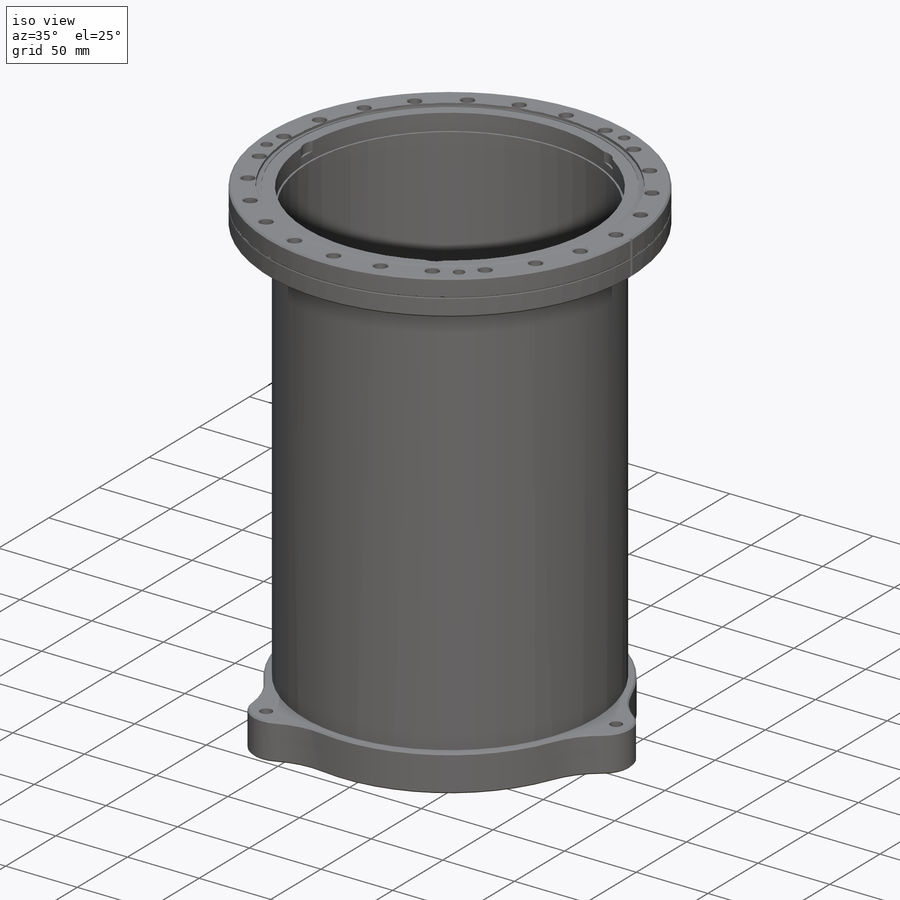
[diagram: iso view]
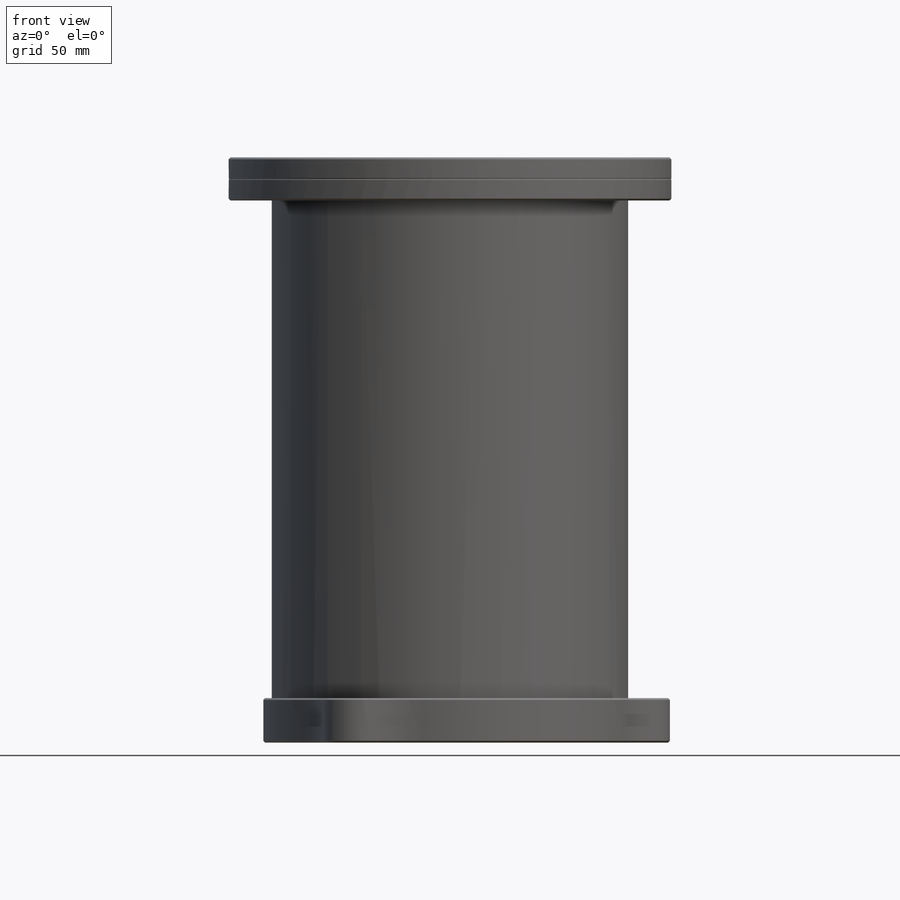
[diagram: front view]
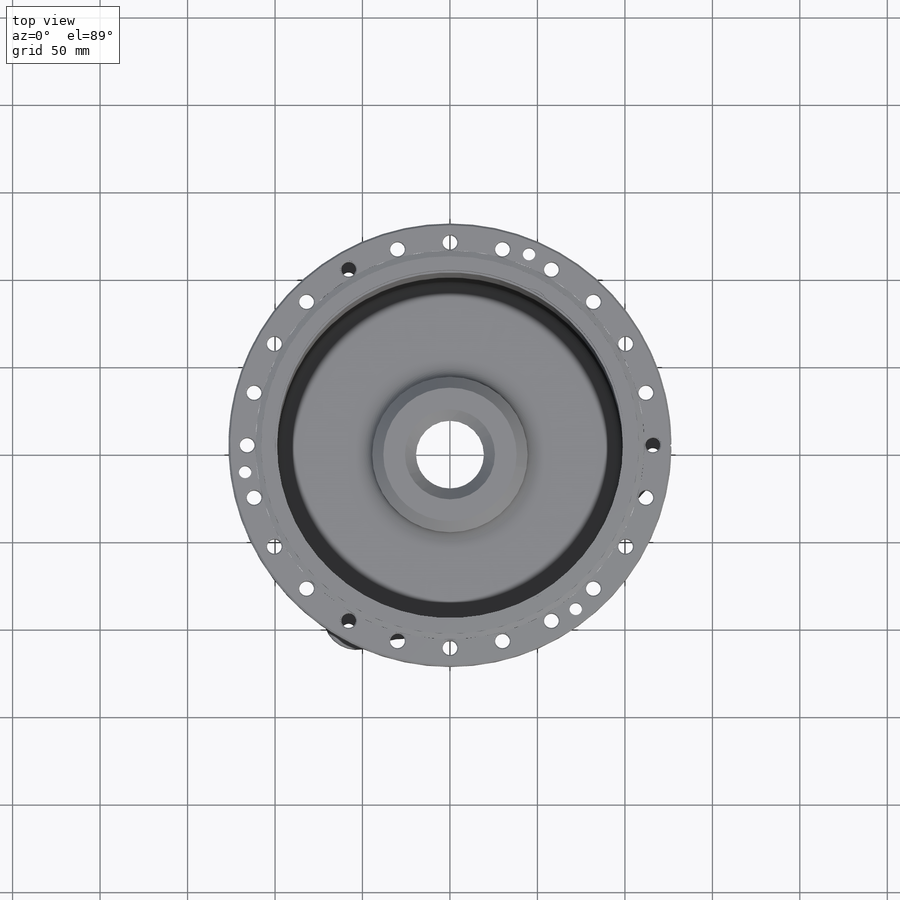
[diagram: top view]
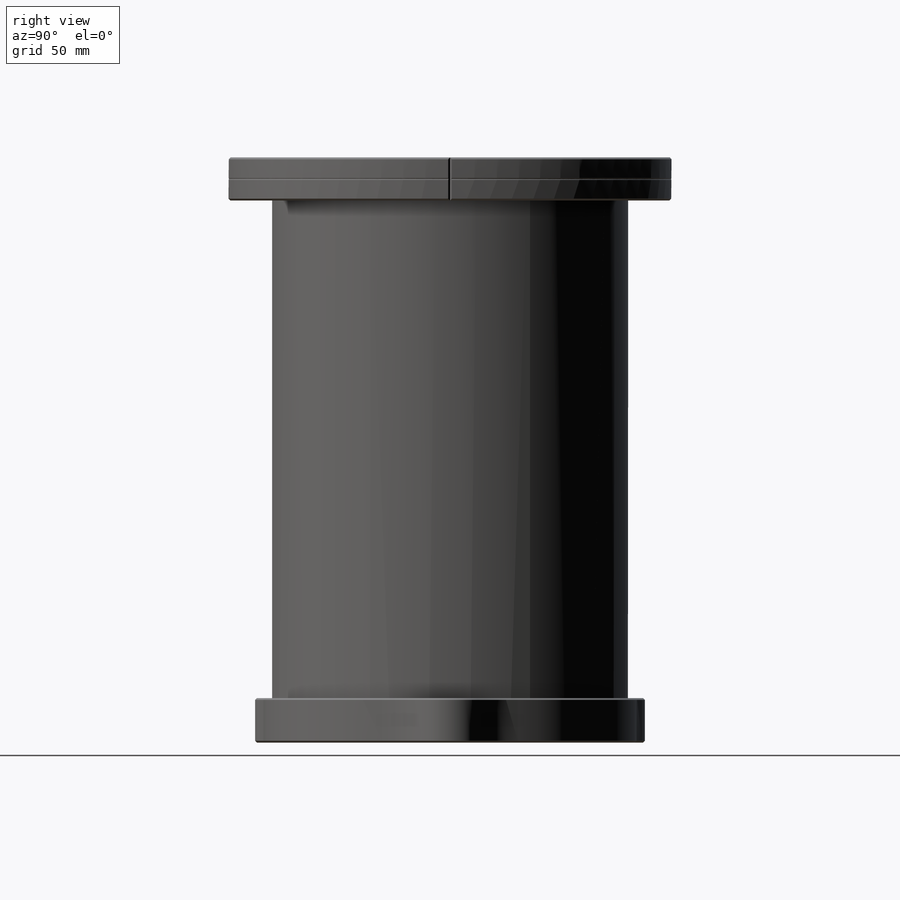
[diagram: right view]
SOLIDWORKS PART (.sldprt)
format: sldprt  version: not decoded by parser v0  size: 1,073,152 bytes
history: native  units: mm
features: cut_extrude x25, sketch x14, hole x4, pattern_circular x4, chamfer x4, plane x3, revolve x2, material x1, cut_revolve x1, fillet x1 (+11 scaffold rows collapsed)
feature tree (70):
  scaffold x11  (default folders/planes/origin — collapsed)
  material  "304 SSTL"
  plane  "XY"
  plane  "XZ"
  plane  "YZ"
  sketch  "Sketch1"  dims[c1.D8=~4.271919mm c1.D9=1.5748mm c1.D1=253.1872mm c1.D2=24.5872mm c1.D3=203.708mm c1.D4=12.319mm c1.D5=200.025mm c1.D6=231.8512mm c1.D7=12.2936mm c2.D8=254.3556mm c2.D4=12.7mm c2.D10=222.25mm c2.D11=215.8492mm c2.D12=~2.543647mm c3.D12=70.0deg c3.D13=1.1684mm c3.D14=1.8288mm]
  revolve  "Nor-Cal p/n 1000-000n"  Angle=360deg
  hole  "Flange, Bottom, 5/16 Clearance Hole1"  Diameter=8.4328mm Depth=24.5872mm
  sketch  "Sketch37"  dims[D1=231.8512mm]
  sketch  "Sketch36"  dims[hole-wizard template sketch: 46 standard entries collapsed; hole parameters kept: c15.Thru Hole Dia.=8.4328mm c15.Thru Hole Depth=24.5872mm c15.Near C'Sink Dia.=9.7028mm c15.D4=~3.666174mm c15.Near C'Sink Angle=90.0deg c15.Far C'Sink Dia.=9.7028mm c15.D6=~9.919017mm c15.Far C'Sink Angle=90.0deg]
  pattern_circular  "Flange Bottom, 5/16 CirPattern10"  Count=24 Angle=15deg
  sketch  "Sketch11"  dims[c1.D2=253.1872mm c1.D4=251.1552mm c1.D1=~145.570797mm c2.D1=45.0deg c2.D2=0.762mm c2.D3=5.08mm c3.D2=125.5776mm]
  cut_extrude  "Alignment Cut-Extrude5"  Depth=25.4mm
  hole  "Flange thru Holes drill size "K""  Diameter=7.1374mm Depth=24.5872mm
  sketch  "Sketch33"  dims[c1.D1=~115.537672mm c1.D3=236.22mm c1.D5=8.4328mm c1.D4=8.4328mm c2.D1=~114.441031mm c3.D1=15.0deg c3.D2=~115.509891mm c4.D2=7.5deg c4.D4=115.9256mm]
  sketch  "Sketch32"  dims[hole-wizard template sketch: 59 standard entries collapsed; hole parameters kept: c18.Thru Hole Dia.=7.1374mm c18.Thru Hole Depth=24.5872mm]
  pattern_circular  "Flange thru Holes for CirPattern7"  Count=3 Angle=120deg
  sketch  "Sketch4"  dims[c1.D3=6.35mm c1.D4=9.525mm c1.D1=6.35mm c2.D3=9.525mm c2.D2=9.525mm c3.D3=6.35mm c3.D7=10.16mm c3.D8=508.0mm c3.D10=6.731mm c4.D3=6.35mm c4.D10=6.35mm c4.D19=12.7mm c5.D3=4.7625mm c5.D20=4.7625mm c5.D1=152.4mm c5.D2=6.35mm c5.D5=3.175mm c5.D4=223.52mm c6.D1=3.175mm c6.D4=308.61mm c6.D6=330.2mm c6.D2=24.13mm c7.D6=25.4mm c7.D9=3.175mm c7.D2=7.62mm c7.D7=254.0mm c8.D9=~20.00165mm c9.D9=90.0deg c9.D4=305.435mm c10.D9=203.2mm c10.D11=3.048mm c10.D13=0.254mm c10.D14=6.35mm c10.D15=203.708mm c10.D10=0.0254mm c10.D16=0.254mm c10.D17=0.0254mm c10.D18=12.7mm c10.D3=~5.709278mm c10.D8=6.35mm c10.D19=76.2mm c11.D8=12.7mm c11.D18=25.4mm c11.D19=44.45mm c11.D21=12.7mm c11.D22=34.925mm c11.D4=309.88mm c11.D5=98.552mm c11.D9=3.048mm c11.D10=303.0093mm c12.D5=101.854mm c12.D10=~310.068426mm c12.D4=309.88mm c12.D3=309.88mm c12.D12=0.0254mm]
  revolve  "TopFlange & Wall Revolve2"  Angle=360deg cosMaterialEX=10009317 cosMaterialNUXY=330mm cosMaterialGXY=3771626700.0mm cosMaterialALPX=0.013333mm cosMaterialDENS=97.543705mm cosMaterialKX=2.274387mm cosMaterialC=310.55901mm Units=1000mm AnalysisType=0mm MeshType=0mm cosMaterialSIGYLD=7999982.8mm cosMaterialSIGXT=17999943mm cosMaterialSIGXC=0mm sMaterialName=0mm cosFMVItemName=0mm
  cut_extrude  "Pressures:Restraint1-1"  Depth=4000mm RestraintType=4000mm Value=0mm cosRestraintComp:1=0mm cosRestraintComp:2=0mm cosRestraintComp:3=0mm cosRestraintComp:4=0mm cosRestraintComp:5=0mm cosRestraintComp:6=0mm Unit=3000mm AnalysisType=0mm MeshType=0mm cosRestraintCompCheck1=1000mm cosRestraintCompCheck2=1000mm cosRestraintCompCheck3=1000mm cosRestraintCompCheck4=0mm
  cut_extrude  "Pressures:Pressure2-1"  Depth=0mm Direction=0mm Value=30000mm Unit=1000mm AnalysisType=0mm MeshType=0mm cosPressureRefPlaneSet=1000mm cosPressureRefPlaneOrigin1=0mm cosPressureRefPlaneOrigin2=0mm cosPressureRefPlaneOrigin3=0mm cosPressureRefPlaneXDir1=1000mm cosPressureRefPlaneXDir2=0mm cosPressureRefPlaneXDir3=0mm cosPressureRefPlaneNormal1=0mm cosPressureRefPlaneNormal2=0mm cosPressureRefPlaneNormal3=1000mm
  cut_extrude  "Pressures:Pressure2-2"  Depth=0mm Direction=0mm Value=30000mm Unit=1000mm AnalysisType=0mm MeshType=0mm cosPressureRefPlaneSet=1000mm cosPressureRefPlaneOrigin1=0mm cosPressureRefPlaneOrigin2=0mm cosPressureRefPlaneOrigin3=0mm cosPressureRefPlaneXDir1=1000mm cosPressureRefPlaneXDir2=0mm cosPressureRefPlaneXDir3=0mm cosPressureRefPlaneNormal1=0mm cosPressureRefPlaneNormal2=0mm cosPressureRefPlaneNormal3=1000mm
  cut_extrude  "Pressures:Pressure2-3"  Depth=0mm Direction=0mm Value=30000mm Unit=1000mm AnalysisType=0mm MeshType=0mm cosPressureRefPlaneSet=1000mm cosPressureRefPlaneOrigin1=0mm cosPressureRefPlaneOrigin2=0mm cosPressureRefPlaneOrigin3=0mm cosPressureRefPlaneXDir1=1000mm cosPressureRefPlaneXDir2=0mm cosPressureRefPlaneXDir3=0mm cosPressureRefPlaneNormal1=0mm cosPressureRefPlaneNormal2=0mm cosPressureRefPlaneNormal3=1000mm
  cut_extrude  "Pressures:Pressure2-4"  Depth=0mm Direction=0mm Value=30000mm Unit=1000mm AnalysisType=0mm MeshType=0mm cosPressureRefPlaneSet=1000mm cosPressureRefPlaneOrigin1=0mm cosPressureRefPlaneOrigin2=0mm cosPressureRefPlaneOrigin3=0mm cosPressureRefPlaneXDir1=1000mm cosPressureRefPlaneXDir2=0mm cosPressureRefPlaneXDir3=0mm cosPressureRefPlaneNormal1=0mm cosPressureRefPlaneNormal2=0mm cosPressureRefPlaneNormal3=1000mm
  cut_extrude  "FaceID-1"  Depth=1000mm faceID=1000mm cosFaceID=0
  cut_extrude  "FaceID-2"  Depth=2000mm faceID=2000mm
  cut_extrude  "FaceID-3"  Depth=3000mm faceID=3000mm
  cut_extrude  "FaceID-4"  Depth=4000mm faceID=4000mm
  cut_extrude  "FaceID-5"  Depth=5000mm faceID=5000mm
  cut_extrude  "FaceID-6"  Depth=6000mm faceID=6000mm
  cut_extrude  "FaceID-7"  Depth=7000mm faceID=7000mm
  cut_extrude  "FaceID-8"  Depth=8000mm faceID=8000mm
  cut_extrude  "FaceID-9"  Depth=9000mm faceID=9000mm
  cut_extrude  "FaceID-10"  Depth=10000mm faceID=10000mm
  cut_extrude  "FaceID-11"  Depth=11000mm faceID=11000mm
  cut_extrude  "FaceID-12"  Depth=12000mm faceID=12000mm
  cut_extrude  "FaceID-13"  Depth=13000mm faceID=13000mm
  cut_extrude  "FaceID-14"  Depth=14000mm faceID=14000mm
  cut_extrude  "FaceID-15"  Depth=15000mm faceID=15000mm
  cut_extrude  "FaceID-16"  Depth=16000mm faceID=16000mm
  cut_extrude  "BSIDef1-79"  Depth=434428356000.0mm ID=434428356000.0mm bsiID=0
  sketch  "Sketch27"  dims[c1.D1=~8.643187mm c2.D1=20.0deg c2.D2=38.8112mm c2.D3=41.91mm c2.D4=48.3108mm c2.D5=1.1684mm c2.D6=1.8288mm c3.D5=1.8288mm c3.D6=1.1684mm c3.D7=31.75mm c3.D8=38.1mm c3.D2=19.4056mm c3.D3=30.5816mm c3.D4=24.1554mm c4.D5=8.1788mm c4.D6=1.5494mm c4.D7=31.75mm]
  cut_revolve  "FeedThru Cut-Revolve1"  Angle=360deg
  hole  "FeedThru 1/4-28 Tapped Hole2"  Diameter=5.4102mm Depth=11.049mm
  sketch  "Sketch29"  dims[D1=~29.36875mm]
  sketch  "Sketch28"  dims[hole-wizard template sketch: 26 standard entries collapsed; hole parameters kept: c8.Tap Drill Dia.=5.4102mm c8.Tap Drill Depth=11.049mm c8.Thread Major Dia.=6.35mm c8.Thread Depth=9.779mm c8.Near C'Sink Dia.=7.62mm c8.D6=~4.399409mm c8.Near C'Sink Angle=90.0deg c8.D7=~14.816244mm c8.Drill Angle=180.0deg]
  pattern_circular  "FeedThru 1/4-28 CirPattern8"  Count=6 Angle=60deg
  hole  "5/16-24 Tapped Hole1"  Diameter=7.9375mm Depth=25.4mm
  sketch  "Sketch39"
  sketch  "Sketch38"  dims[hole-wizard template sketch: 46 standard entries collapsed; hole parameters kept: c15.Thread Major Dia.=7.9375mm c15.Thru Tap Drill Depth=25.4mm c15.Near C'Sink Dia.=8.1788mm c15.D4=~3.666174mm c15.Near C'Sink Angle=90.0deg c15.Far C'Sink Dia.=8.1788mm c15.D6=~9.919017mm c15.Far C'Sink Angle=90.0deg]
  pattern_circular  "5/16-24 CirPattern11"  Count=3 Angle=120deg
  sketch  "Sketch40"  dims[c1.D1=~8.211909mm c1.D2=21.4122mm c2.D1=~78.190589mm c3.D1=60.0deg c3.D3=90.805mm]
  cut_extrude  "Extrude2"  Depth=7.62mm
  fillet  "Fillet1"  Radius=4.7752mm
  sketch  "Sketch41"  dims[c1.D1=50.8mm c1.D2=50.8mm c1.D3=106.68mm c1.D4=19.05mm c1.D5=19.05mm c1.D6=19.05mm c1.D7=279.4mm c2.D1=115.9256mm]
  chamfer  "FeedThru Inner Chamfer6"  Distance=6.35mm Angle=45deg
  chamfer  "Top Flange Inner Chamfer5"  Distance=6.35mm Angle=45deg
  cut_extrude  "Free End weight reduction"  [1 undecoded]
  chamfer  "Top Flange Chamfer2"  Distance=1.016mm Angle=45deg
  chamfer  "bottom Flange Chamfer1"  Distance=1.016mm Angle=45deg
decode coverage: 53 of 55 modeling features carry decoded parameters
note: ~ marks probable driven/reference dimensions
note: 1 parameter value undecoded
summary: Diameter pulled from absorbed wizard sketch
note: suppression state not decoded; provenance and decode notes live in map.json
